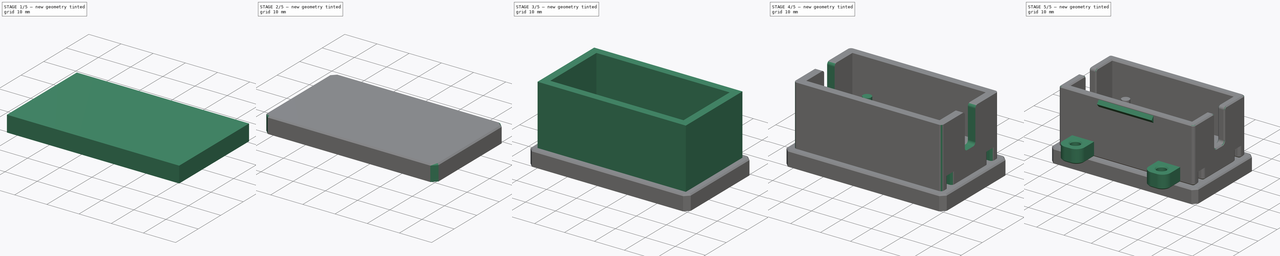
[diagram: build sequence overview — one tinted view per stage of 5, left to right]
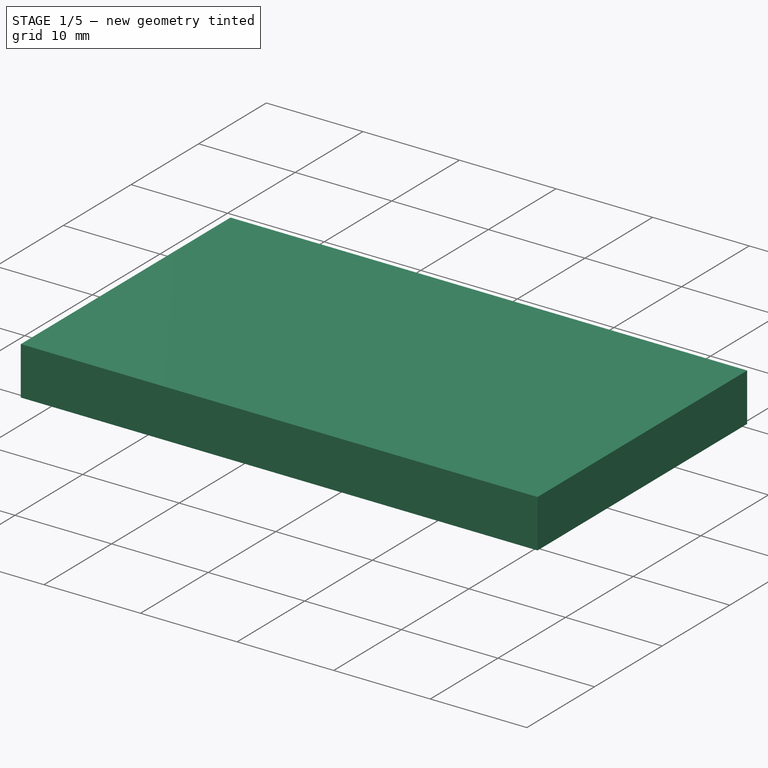
[diagram: stage 1 of 5 — iso view after this stage's code; geometry added in this stage tinted green]
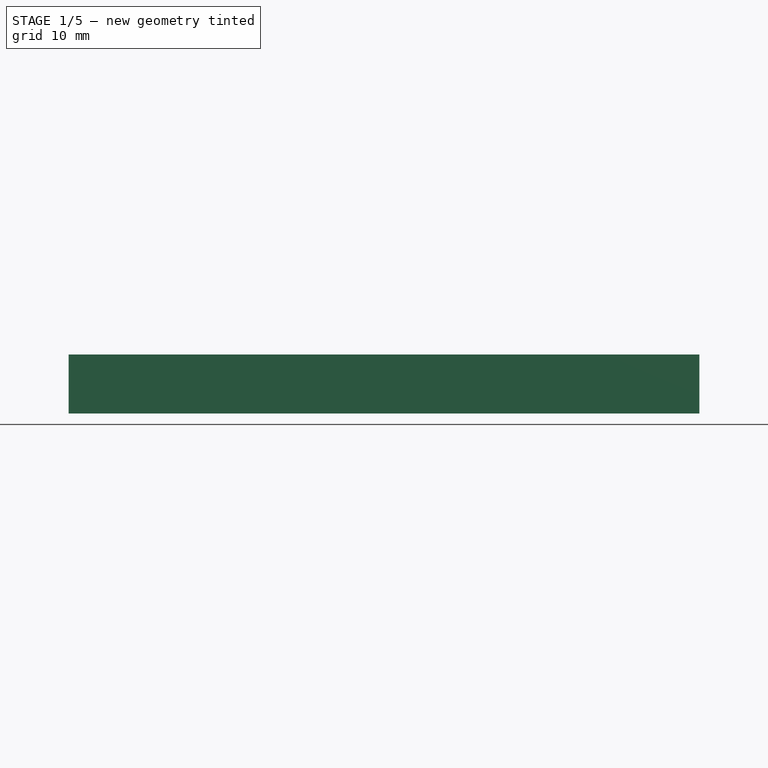
[diagram: stage 1 of 5 — front view after this stage's code; geometry added in this stage tinted green]
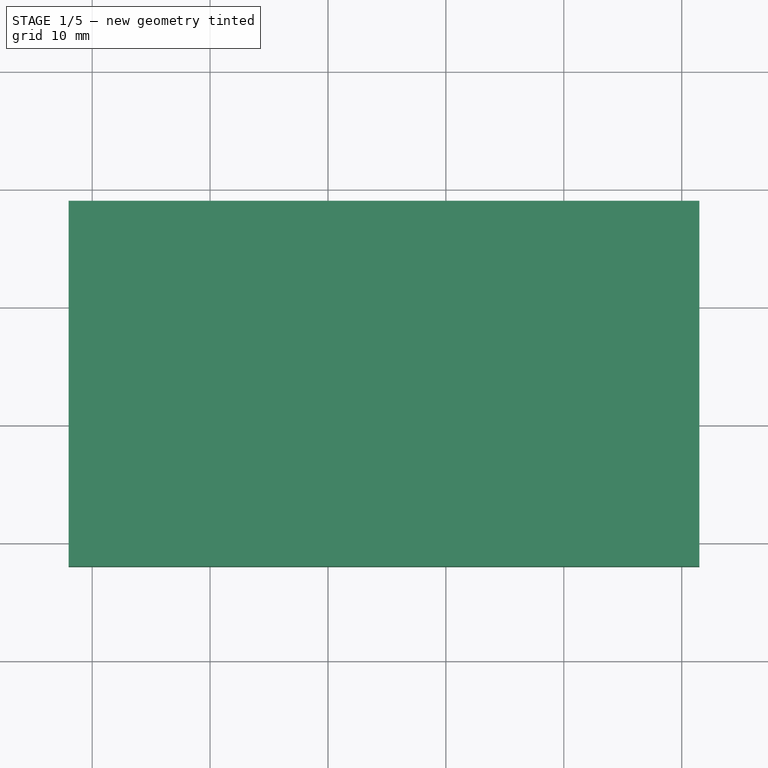
[diagram: stage 1 of 5 — top view after this stage's code; geometry added in this stage tinted green]
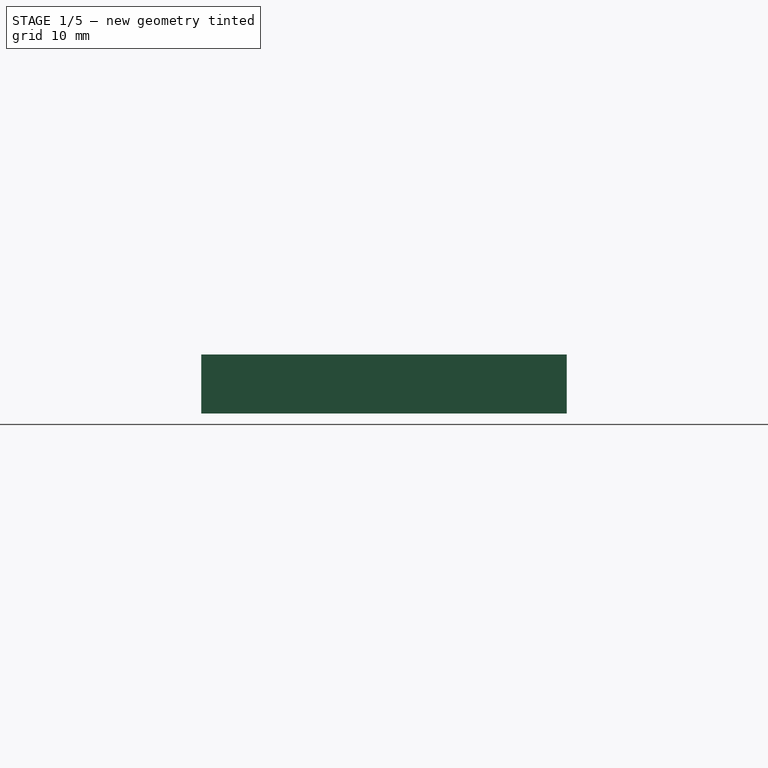
[diagram: stage 1 of 5 — right view after this stage's code; geometry added in this stage tinted green]
FCSTD DOCUMENT  (FreeCAD 0.19R24291 (Git))
Label: dc-dc-mounter
License: All rights reserved
LicenseURL: http://en.wikipedia.org/wiki/All_rights_reserved
objects: Sketcher::SketchObject×12, PartDesign::Pocket×7, PartDesign::Pad×5, PartDesign::Chamfer×4, PartDesign::Fillet×3, PartDesign::Plane×2, PartDesign::Body×2
note: 54 computed .brp shape members not serialized (recipe doc carries the construction recipe); baked Part::Feature solids carry a one-line shape summary decoded from their .brp

FEATURE [Sketcher::SketchObject] Sketch007
  FullyConstrained = true
  MapMode = 5
  Support = -> [XY_Plane001]
  sketch-geometry (4):
    g0: LineSegment StartX=-2 StartY=29 StartZ=0 EndX=51.5 EndY=29 EndZ=0
    g1: LineSegment StartX=51.5 StartY=29 StartZ=0 EndX=51.5 EndY=-2 EndZ=0
    g2: LineSegment StartX=51.5 StartY=-2 StartZ=0 EndX=-2 EndY=-2 EndZ=0
    g3: LineSegment StartX=-2 StartY=-2 StartZ=0 EndX=-2 EndY=29 EndZ=0
  constraints (12):
    c: Coincident(g0,g1)
    c: Coincident(g1,g2)
    c: Coincident(g2,g3)
    c: Coincident(g3,g0)
    c: Horizontal(g0)
    c: Horizontal(g2)
    c: Vertical(g1)
    c: Vertical(g3)
    c: DistanceY(g3,g3) = 31
    c: DistanceY(g2,g-1) = 2
    c: DistanceX(g0,g0) = 53.5
    c: DistanceX(g2,g-1) = 2
FEATURE [PartDesign::Pad] Pad004
  Direction = (1,1,1)
  Length = 5
  Length2 = 100
  Profile = -> Sketch007
  Reversed = true
  Type = 0
FEATURE [Sketcher::SketchObject] Sketch008
  FullyConstrained = true
  MapMode = 5
  Placement = pos=(0,0,-5) rot=(1,0,0;3.14159rad)
  Support = -> [Pad004]
  sketch-geometry (4):
    g0: LineSegment StartX=-0.15 StartY=0.15 StartZ=0 EndX=49.65 EndY=0.15 EndZ=0
    g1: LineSegment StartX=49.65 StartY=0.15 StartZ=0 EndX=49.65 EndY=-27.15 EndZ=0
    g2: LineSegment StartX=49.65 StartY=-27.15 StartZ=0 EndX=-0.15 EndY=-27.15 EndZ=0
    g3: LineSegment StartX=-0.15 StartY=-27.15 StartZ=0 EndX=-0.15 EndY=0.15 EndZ=0
  constraints (12):
    c: Coincident(g0,g1)
    c: Coincident(g1,g2)
    c: Coincident(g2,g3)
    c: Coincident(g3,g0)
    c: Horizontal(g0)
    c: Horizontal(g2)
    c: Vertical(g1)
    c: Vertical(g3)
    c: DistanceX(g0,g0) = 49.8
    c: DistanceY(g1,g1) = 27.3
    c: DistanceX(g0,g-1) = 0.15
    c: DistanceY(g-1,g0) = 0.15
FEATURE [PartDesign::Pocket] Pocket003
  BaseFeature = -> Pad004
  Length = 3.5
  Length2 = 100
  Profile = -> Sketch008
  Type = 0
FEATURE [PartDesign::Plane] DatumPlane001
  AttachmentOffset = pos=(0,0,24.75) rot=(0,0,1;0rad)
  Length = 64.3923
  MapMode = 5
  Placement = pos=(24.75,-5.5e-15,5.5e-15) rot=(0.57735,0.57735,0.57735;2.0944rad)
  ResizeMode = 0
  Support = -> [YZ_Plane001]
  Width = 60.3923
FEATURE [Sketcher::SketchObject] Sketch009
  ExternalGeometry = -> [Pocket003]
  FullyConstrained = true
  MapMode = 5
  Placement = pos=(24.75,-5.5e-15,5.5e-15) rot=(0.57735,0.57735,0.57735;2.0944rad)
  Support = -> [DatumPlane001]
  sketch-geometry (6):
    g0: LineSegment StartX=-0.15 StartY=-2.05825 StartZ=0 EndX=-1.15 EndY=-3.25 EndZ=0
    g1: LineSegment StartX=-1.15 StartY=-3.25 StartZ=0 EndX=-0.15 EndY=-4.44175 EndZ=0
    g2: LineSegment StartX=-0.15 StartY=-4.44175 StartZ=0 EndX=-0.15 EndY=-2.05825 EndZ=0
    g3: LineSegment StartX=27.15 StartY=-2.05825 StartZ=0 EndX=28.15 EndY=-3.25 EndZ=0
    g4: LineSegment StartX=28.15 StartY=-3.25 StartZ=0 EndX=27.15 EndY=-4.44175 EndZ=0
    g5: LineSegment StartX=27.15 StartY=-4.44175 StartZ=0 EndX=27.15 EndY=-2.05825 EndZ=0
  constraints (18):
    c: PointOnObject(g0,g-3)
    c: Coincident(g0,g1)
    c: Coincident(g1,g2)
    c: Coincident(g2,g0)
    c: Vertical(g2)
    c: Angle(g0,g2) = 0.698132
    c: Angle(g2,g1) = 0.698132
    c: DistanceX(g0,g1) = 1
    c: DistanceY(g0,g-1) = 3.25
    c: PointOnObject(g3,g-4)
    c: Coincident(g3,g4)
    c: Coincident(g4,g5)
    c: Coincident(g5,g3)
    c: Vertical(g5)
    c: Horizontal(g0,g3)
    c: Horizontal(g3,g0)
    c: Horizontal(g4,g1)
    c: DistanceX(g3,g3) = 1
FEATURE [PartDesign::Pocket] Pocket004
  BaseFeature = -> Pocket003
  Length = 22
  Length2 = 100
  Midplane = true
  Profile = -> Sketch009
  Type = 0
FEATURE [PartDesign::Fillet] Fillet002
  Base = -> Pocket004 [Edge15,Edge21]
  BaseFeature = -> Pocket004
  Radius = 0.4
  SupportTransform = false
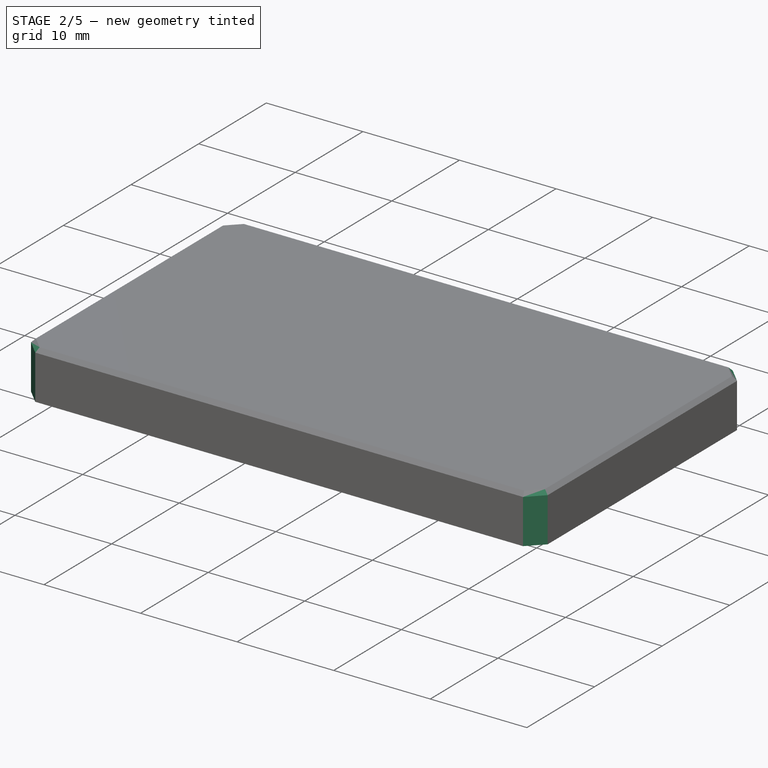
[diagram: stage 2 of 5 — iso view after this stage's code; geometry added in this stage tinted green]
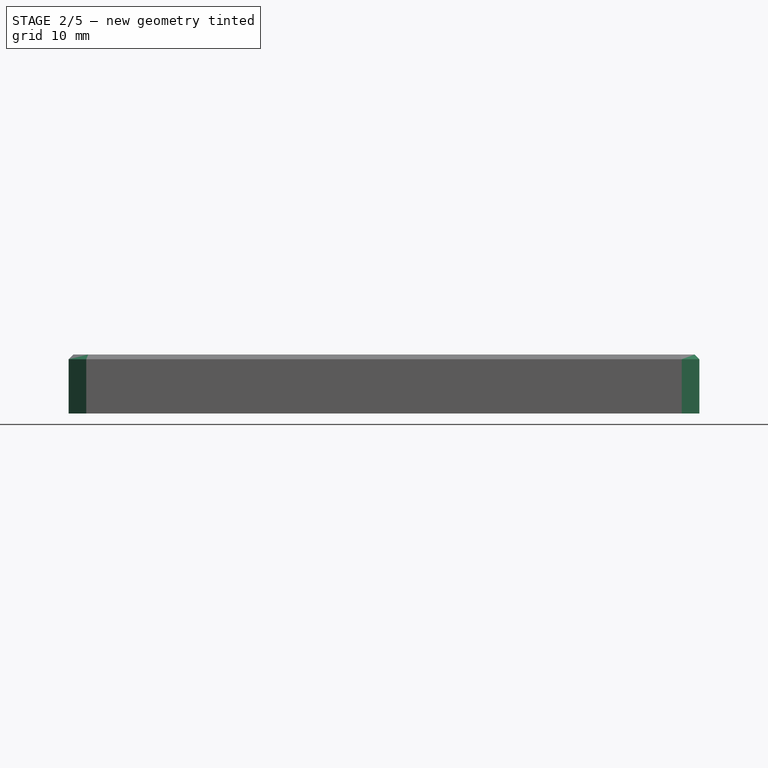
[diagram: stage 2 of 5 — front view after this stage's code; geometry added in this stage tinted green]
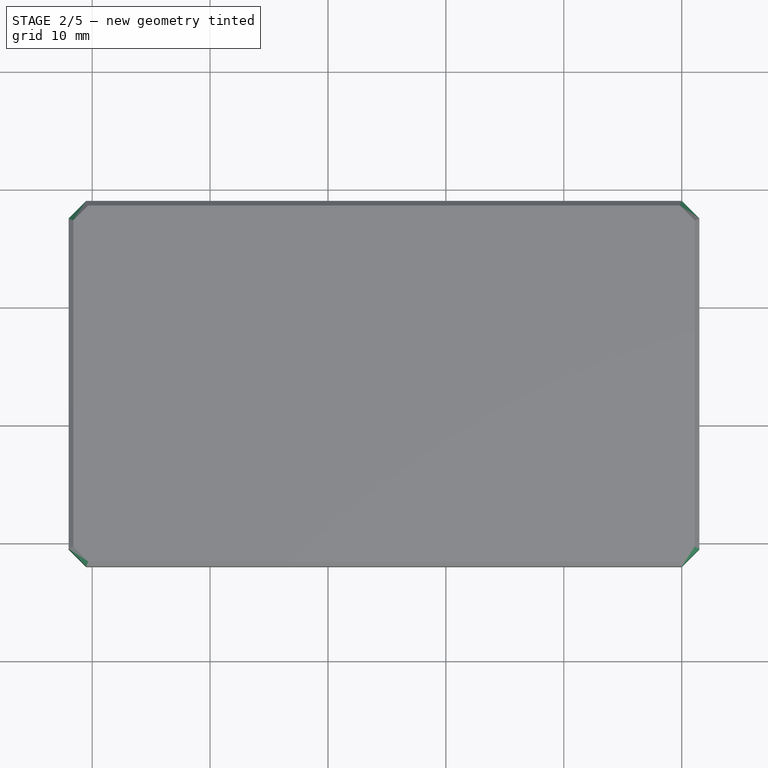
[diagram: stage 2 of 5 — top view after this stage's code; geometry added in this stage tinted green]
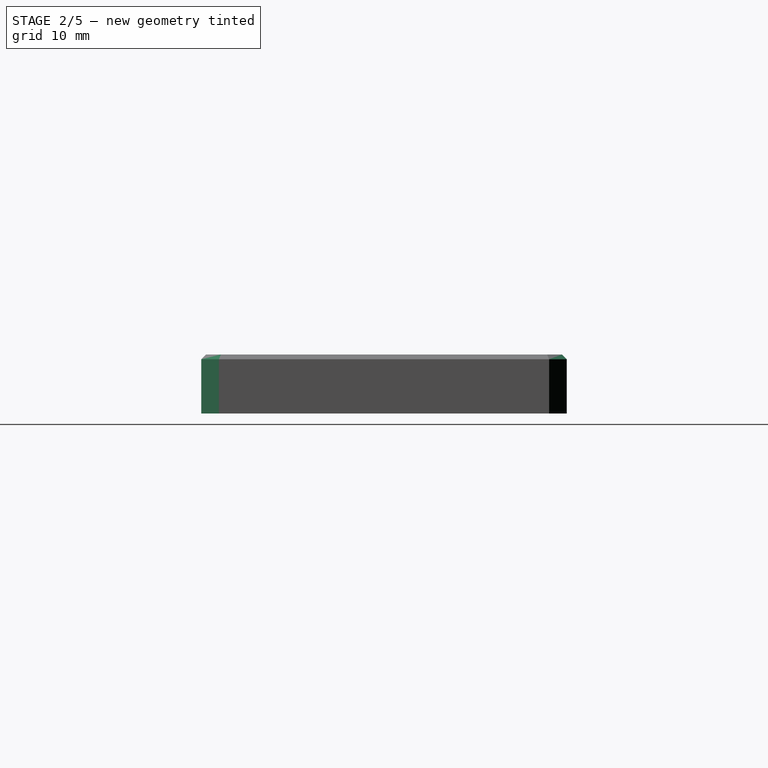
[diagram: stage 2 of 5 — right view after this stage's code; geometry added in this stage tinted green]
FEATURE [PartDesign::Body] Body
  Group = -> [Sketch,Pad,Sketch001,Pocket,Sketch002,Pocket001,Sketch003,Pocket002,Sketch004,Pad001,Fillet,Sketch005,Pad002,Fillet001,DatumPlane,Sketch006,Pad003,Chamfer002]
  Origin = -> Origin
  Tip = -> Chamfer002
FEATURE [Sketcher::SketchObject] Sketch010
  ExternalGeometry = -> [Fillet002]
  FullyConstrained = true
  MapMode = 5
  Placement = pos=(0,0,-5) rot=(1,0,0;3.14159rad)
  Support = -> [Fillet002]
  sketch-geometry (4):
    g0: LineSegment StartX=13.75 StartY=0.25 StartZ=0 EndX=35.75 EndY=0.25 EndZ=0
    g1: LineSegment StartX=35.75 StartY=0.25 StartZ=0 EndX=35.75 EndY=-27.25 EndZ=0
    g2: LineSegment StartX=35.75 StartY=-27.25 StartZ=0 EndX=13.75 EndY=-27.25 EndZ=0
    g3: LineSegment StartX=13.75 StartY=-27.25 StartZ=0 EndX=13.75 EndY=0.25 EndZ=0
  constraints (12):
    c: Coincident(g0,g1)
    c: Coincident(g1,g2)
    c: Coincident(g2,g3)
    c: Coincident(g3,g0)
    c: Horizontal(g0)
    c: Horizontal(g2)
    c: Vertical(g1)
    c: Vertical(g3)
    c: PointOnObject(g0,g-3)
    c: Vertical(g0,g-4)
    c: DistanceY(g-1,g0) = 0.25
    c: DistanceY(g3,g3) = 27.5
FEATURE [PartDesign::Pocket] Pocket005
  BaseFeature = -> Fillet002
  Length = 1
  Length2 = 100
  Profile = -> Sketch010
  Refine = true
  Type = 0
FEATURE [PartDesign::Chamfer] Chamfer
  Angle = 45
  Base = -> Pocket005 [Edge18,Edge22,Edge20,Edge17]
  BaseFeature = -> Pocket005
  ChamferType = 0
  FlipDirection = false
  Size = 1.5
  Size2 = 1
  SupportTransform = false
FEATURE [PartDesign::Chamfer] Chamfer003
  Angle = 45
  Base = -> Chamfer [Face20]
  BaseFeature = -> Chamfer
  ChamferType = 0
  FlipDirection = false
  Size = 0.4
  Size2 = 1
  SupportTransform = false
FEATURE [PartDesign::Chamfer] Chamfer004
  Angle = 45
  Base = -> Chamfer003 [Edge25,Edge19]
  BaseFeature = -> Chamfer003
  ChamferType = 0
  FlipDirection = false
  Size = 0.4
  Size2 = 1
  SupportTransform = false
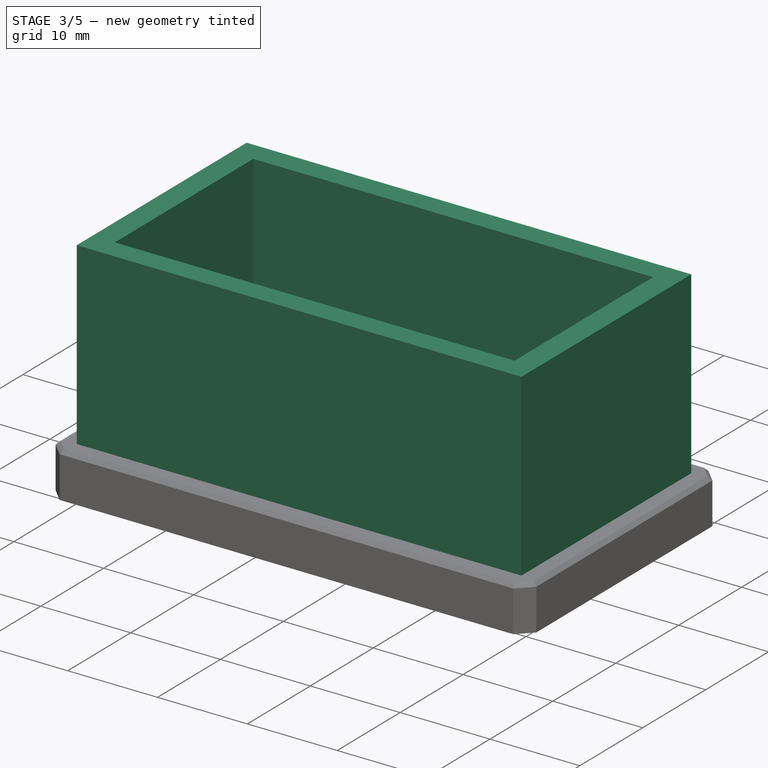
[diagram: stage 3 of 5 — iso view after this stage's code; geometry added in this stage tinted green]
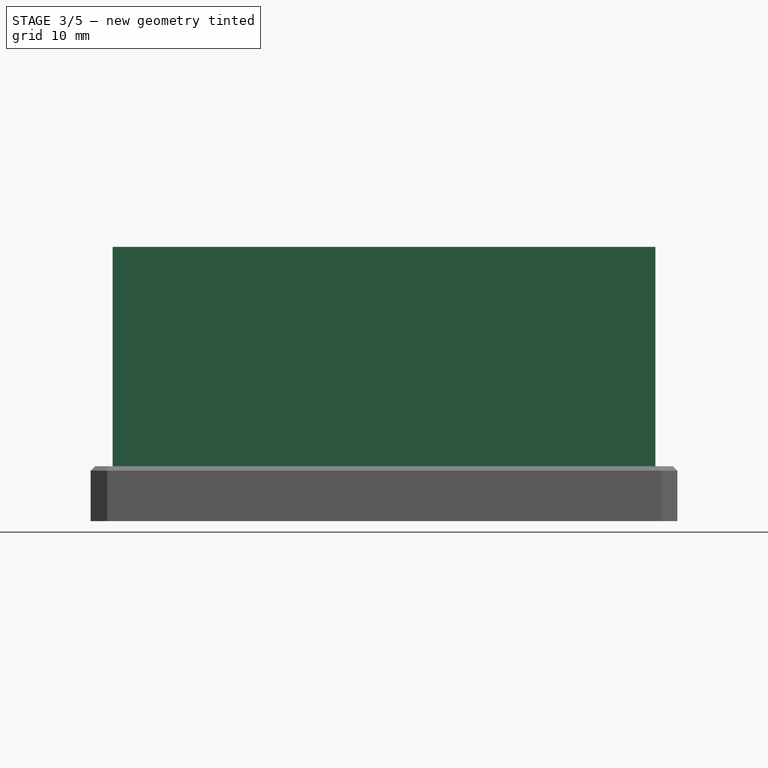
[diagram: stage 3 of 5 — front view after this stage's code; geometry added in this stage tinted green]
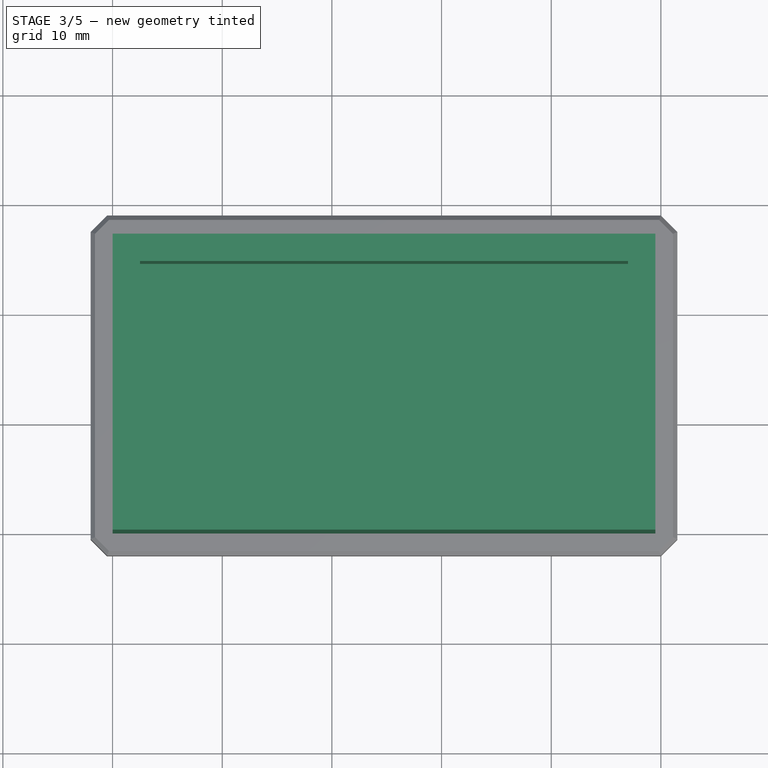
[diagram: stage 3 of 5 — top view after this stage's code; geometry added in this stage tinted green]
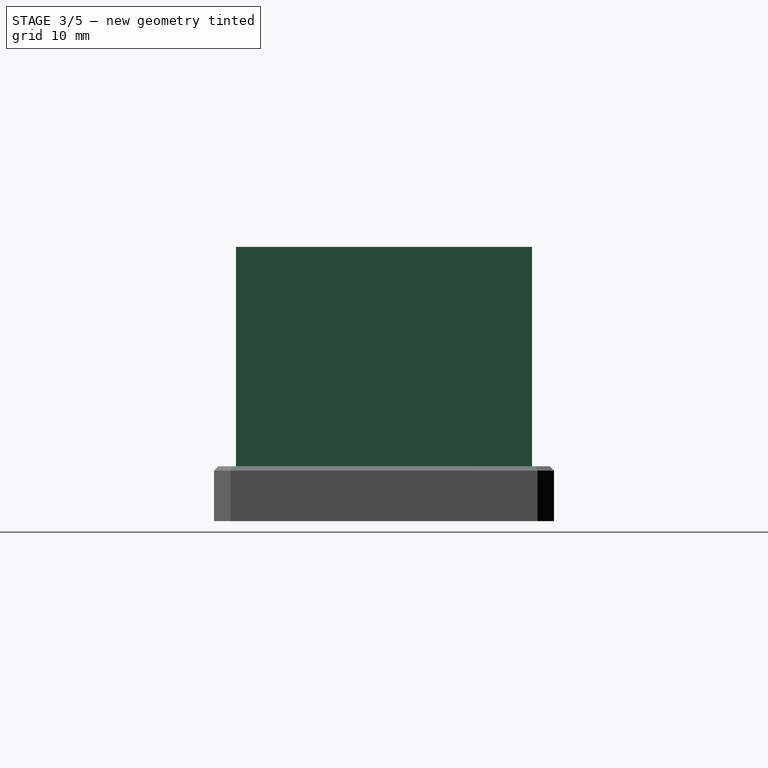
[diagram: stage 3 of 5 — right view after this stage's code; geometry added in this stage tinted green]
FEATURE [Sketcher::SketchObject] Sketch
  FullyConstrained = true
  MapMode = 5
  Support = -> [XY_Plane]
  sketch-geometry (4):
    g0: LineSegment StartX=0 StartY=0 StartZ=0 EndX=49.5 EndY=0 EndZ=0
    g1: LineSegment StartX=49.5 StartY=0 StartZ=0 EndX=49.5 EndY=27 EndZ=0
    g2: LineSegment StartX=49.5 StartY=27 StartZ=0 EndX=0 EndY=27 EndZ=0
    g3: LineSegment StartX=0 StartY=27 StartZ=0 EndX=0 EndY=0 EndZ=0
  constraints (11):
    c: Coincident(g0,g1)
    c: Coincident(g1,g2)
    c: Coincident(g2,g3)
    c: Coincident(g3,g0)
    c: Horizontal(g0)
    c: Horizontal(g2)
    c: Vertical(g1)
    c: Vertical(g3)
    c: Coincident(g0,g-1)
    c: DistanceX(g2,g2) = 49.5
    c: DistanceY(g1,g1) = 27
FEATURE [PartDesign::Pad] Pad
  Direction = (1,1,1)
  Length = 20
  Length2 = 100
  Profile = -> Sketch
  Type = 0
FEATURE [Sketcher::SketchObject] Sketch001
  ExternalGeometry = -> [Pad]
  FullyConstrained = true
  MapMode = 5
  Placement = pos=(0,0,20) rot=(0,0,1;0rad)
  Support = -> [Pad]
  sketch-geometry (4):
    g0: LineSegment StartX=2.5 StartY=24.5 StartZ=0 EndX=47 EndY=24.5 EndZ=0
    g1: LineSegment StartX=47 StartY=24.5 StartZ=0 EndX=47 EndY=2.5 EndZ=0
    g2: LineSegment StartX=47 StartY=2.5 StartZ=0 EndX=2.5 EndY=2.5 EndZ=0
    g3: LineSegment StartX=2.5 StartY=2.5 StartZ=0 EndX=2.5 EndY=24.5 EndZ=0
  constraints (12):
    c: Coincident(g0,g1)
    c: Coincident(g1,g2)
    c: Coincident(g2,g3)
    c: Coincident(g3,g0)
    c: Horizontal(g0)
    c: Horizontal(g2)
    c: Vertical(g1)
    c: Vertical(g3)
    c: DistanceX(g-1,g2) = 2.5
    c: DistanceX(g0,g-3) = 2.5
    c: DistanceY(g-1,g2) = 2.5
    c: DistanceY(g0,g-3) = 2.5
FEATURE [PartDesign::Pocket] Pocket
  BaseFeature = -> Pad
  Length = 15
  Length2 = 100
  Profile = -> Sketch001
  Type = 0
FEATURE [Sketcher::SketchObject] Sketch011
  FullyConstrained = true
  MapMode = 5
  Placement = pos=(0,0,-1.5) rot=(1,0,0;3.14159rad)
  Support = -> [Chamfer004]
  sketch-geometry (1):
    g0: Circle CenterX=19 CenterY=-3.5 CenterZ=0 NormalX=0 NormalY=0 NormalZ=1 AngleXU=0 Radius=3.45
  constraints (3):
    c: DistanceX(g-1,g0) = 19
    c: DistanceY(g0,g-1) = 3.5
    c: Radius(g0) = 3.45
FEATURE [PartDesign::Pocket] Pocket006
  BaseFeature = -> Chamfer004
  Length = 1
  Length2 = 100
  Profile = -> Sketch011
  Type = 0
FEATURE [PartDesign::Body] Body001
  Group = -> [Sketch007,Pad004,Sketch008,Pocket003,DatumPlane001,Sketch009,Pocket004,Fillet002,Sketch010,Pocket005,Chamfer,Chamfer003,Chamfer004,Sketch011,Pocket006]
  Origin = -> Origin001
  Placement = pos=(0,0,22) rot=(0,0,1;0rad)
  Tip = -> Pocket006
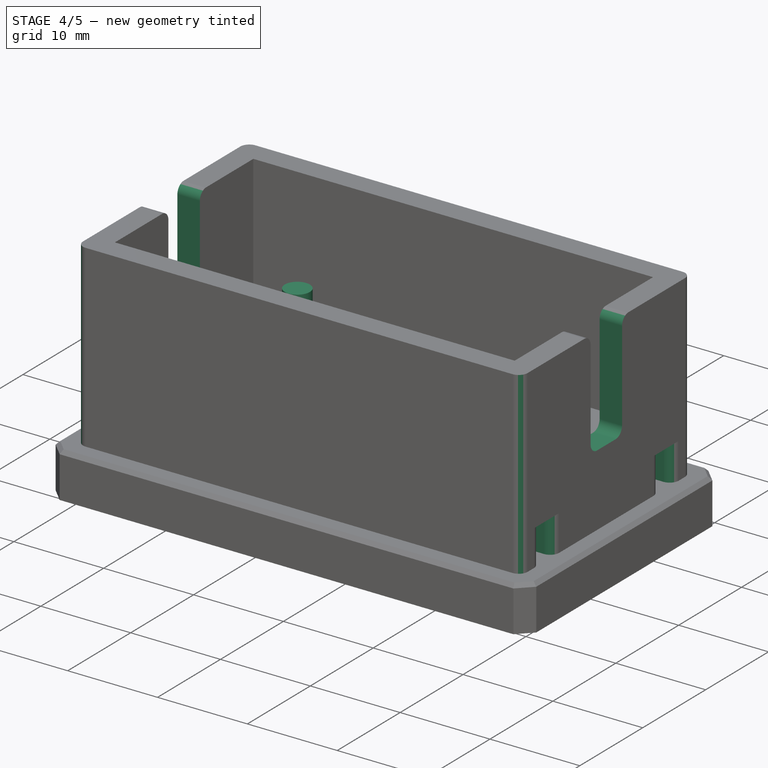
[diagram: stage 4 of 5 — iso view after this stage's code; geometry added in this stage tinted green]
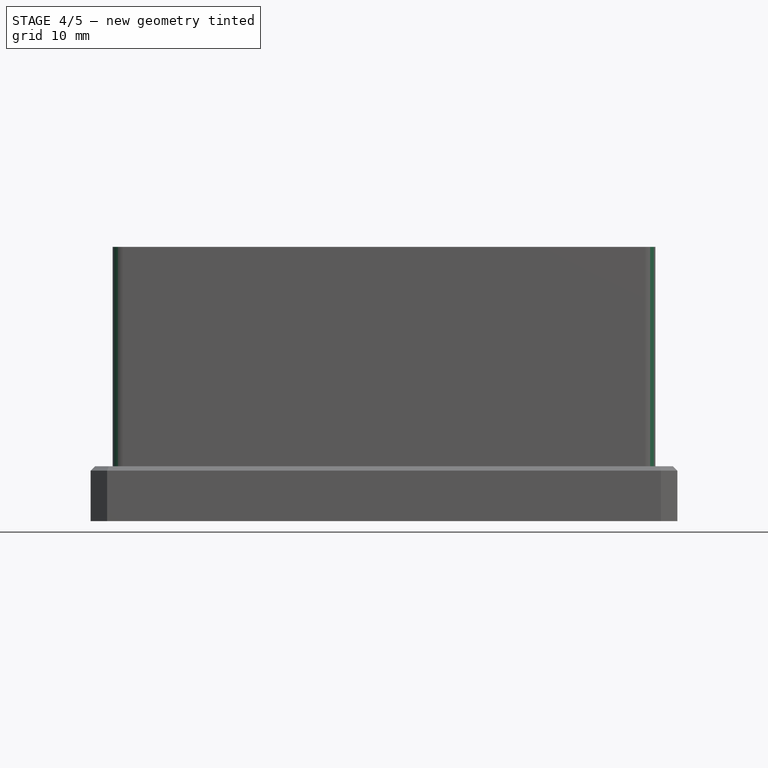
[diagram: stage 4 of 5 — front view after this stage's code; geometry added in this stage tinted green]
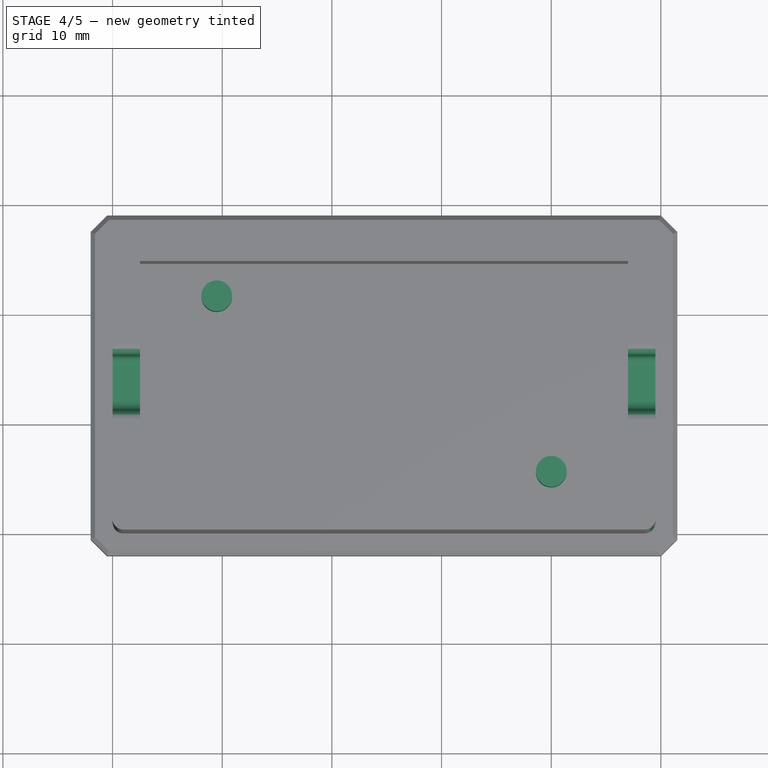
[diagram: stage 4 of 5 — top view after this stage's code; geometry added in this stage tinted green]
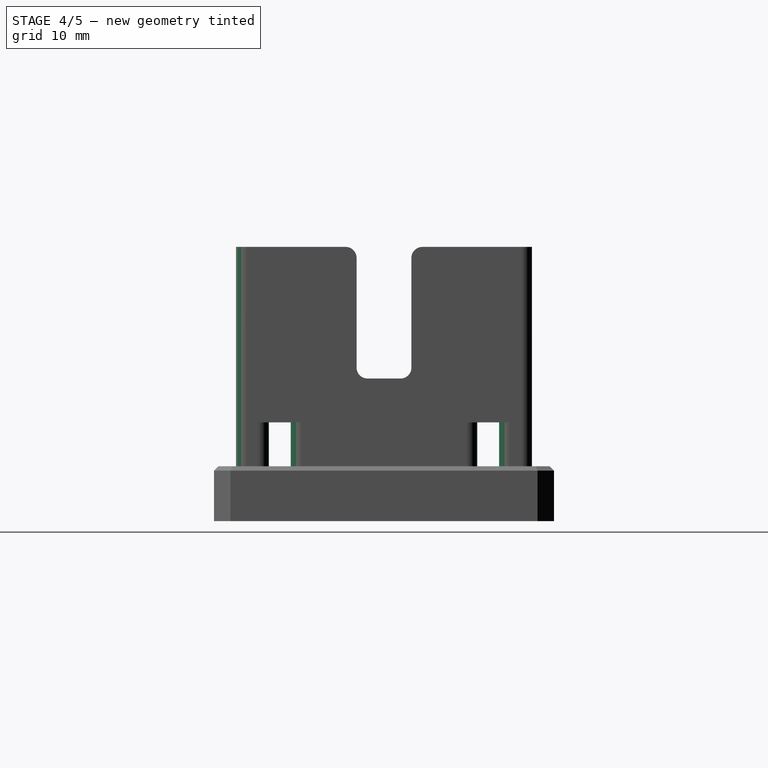
[diagram: stage 4 of 5 — right view after this stage's code; geometry added in this stage tinted green]
FEATURE [Sketcher::SketchObject] Sketch002
  ExternalGeometry = -> [Pocket]
  FullyConstrained = true
  MapMode = 5
  Placement = pos=(0,0,0) rot=(1,0,0;3.14159rad)
  Support = -> [Pocket]
  sketch-geometry (40):
    g0: LineSegment StartX=0 StartY=-3 StartZ=0 EndX=49.5 EndY=-3 EndZ=0
    g1: LineSegment StartX=49.5 StartY=-3 StartZ=0 EndX=49.5 EndY=-5 EndZ=0
    g2: LineSegment StartX=49.5 StartY=-5 StartZ=0 EndX=24 EndY=-5 EndZ=0
    g3: LineSegment StartX=24 StartY=-5 StartZ=0 EndX=24 EndY=-12 EndZ=0
    g4: LineSegment StartX=24 StartY=-12 StartZ=0 EndX=7 EndY=-12 EndZ=0
    g5: LineSegment StartX=7 StartY=-12 StartZ=0 EndX=7 EndY=-5 EndZ=0
    g6: LineSegment StartX=7 StartY=-5 StartZ=0 EndX=0 EndY=-5 EndZ=0
    g7: LineSegment StartX=0 StartY=-5 StartZ=0 EndX=0 EndY=-3 EndZ=0
    g8: LineSegment StartX=14 StartY=-5 StartZ=0 EndX=17 EndY=-5 EndZ=0
    g9: LineSegment StartX=17 StartY=-5 StartZ=0 EndX=17 EndY=-10 EndZ=0
    g10: LineSegment StartX=17 StartY=-10 StartZ=0 EndX=14 EndY=-10 EndZ=0
    g11: LineSegment StartX=14 StartY=-10 StartZ=0 EndX=14 EndY=-5 EndZ=0
    g12: LineSegment StartX=9 StartY=-5 StartZ=0 EndX=12 EndY=-5 EndZ=0
    g13: LineSegment StartX=12 StartY=-5 StartZ=0 EndX=12 EndY=-10 EndZ=0
    g14: LineSegment StartX=12 StartY=-10 StartZ=0 EndX=9 EndY=-10 EndZ=0
    g15: LineSegment StartX=9 StartY=-10 StartZ=0 EndX=9 EndY=-5 EndZ=0
    g16: LineSegment StartX=19 StartY=-5 StartZ=0 EndX=22 EndY=-5 EndZ=0
    g17: LineSegment StartX=22 StartY=-5 StartZ=0 EndX=22 EndY=-10 EndZ=0
    g18: LineSegment StartX=22 StartY=-10 StartZ=0 EndX=19 EndY=-10 EndZ=0
    g19: LineSegment StartX=19 StartY=-10 StartZ=0 EndX=19 EndY=-5 EndZ=0
    g20: LineSegment StartX=0 StartY=-24 StartZ=0 EndX=49.5 EndY=-24 EndZ=0
    g21: LineSegment StartX=49.5 StartY=-24 StartZ=0 EndX=49.5 EndY=-22 EndZ=0
    g22: LineSegment StartX=49.5 StartY=-22 StartZ=0 EndX=42.5 EndY=-22 EndZ=0
    g23: LineSegment StartX=42.5 StartY=-22 StartZ=0 EndX=42.5 EndY=-15 EndZ=0
    g24: LineSegment StartX=42.5 StartY=-15 StartZ=0 EndX=25.5 EndY=-15 EndZ=0
    g25: LineSegment StartX=25.5 StartY=-15 StartZ=0 EndX=25.5 EndY=-22 EndZ=0
    g26: LineSegment StartX=25.5 StartY=-22 StartZ=0 EndX=0 EndY=-22 EndZ=0
    g27: LineSegment StartX=0 StartY=-22 StartZ=0 EndX=0 EndY=-24 EndZ=0
    g28: LineSegment StartX=27.5 StartY=-17 StartZ=0 EndX=30.5 EndY=-17 EndZ=0
    g29: LineSegment StartX=30.5 StartY=-17 StartZ=0 EndX=30.5 EndY=-22 EndZ=0
    g30: LineSegment StartX=30.5 StartY=-22 StartZ=0 EndX=27.5 EndY=-22 EndZ=0
    g31: LineSegment StartX=27.5 StartY=-22 StartZ=0 EndX=27.5 EndY=-17 EndZ=0
    g32: LineSegment StartX=32.5 StartY=-17 StartZ=0 EndX=35.5 EndY=-17 EndZ=0
    g33: LineSegment StartX=35.5 StartY=-17 StartZ=0 EndX=35.5 EndY=-22 EndZ=0
    g34: LineSegment StartX=35.5 StartY=-22 StartZ=0 EndX=32.5 EndY=-22 EndZ=0
    g35: LineSegment StartX=32.5 StartY=-22 StartZ=0 EndX=32.5 EndY=-17 EndZ=0
    g36: LineSegment StartX=37.5 StartY=-17 StartZ=0 EndX=40.5 EndY=-17 EndZ=0
    g37: LineSegment StartX=40.5 StartY=-17 StartZ=0 EndX=40.5 EndY=-22 EndZ=0
    g38: LineSegment StartX=40.5 StartY=-22 StartZ=0 EndX=37.5 EndY=-22 EndZ=0
    g39: LineSegment StartX=37.5 StartY=-22 StartZ=0 EndX=37.5 EndY=-17 EndZ=0
  constraints (120):
    c: PointOnObject(g0,g-2)
    c: PointOnObject(g0,g-3)
    c: Horizontal(g0)
    c: Coincident(g0,g1)
    c: PointOnObject(g1,g-3)
    c: Coincident(g1,g2)
    c: Horizontal(g2)
    c: Coincident(g2,g3)
    c: Vertical(g3)
    c: Coincident(g3,g4)
    c: Horizontal(g4)
    c: Coincident(g4,g5)
    c: Vertical(g5)
    c: Coincident(g5,g6)
    c: PointOnObject(g6,g-2)
    c: Horizontal(g6)
    c: Coincident(g6,g7)
    c: Coincident(g7,g0)
    c: Coincident(g8,g9)
    c: Coincident(g9,g10)
    c: Coincident(g10,g11)
    c: Coincident(g11,g8)
    c: Horizontal(g8)
    c: Horizontal(g10)
    c: Vertical(g9)
    c: Vertical(g11)
    c: Coincident(g12,g13)
    c: Coincident(g13,g14)
    c: Coincident(g14,g15)
    c: Coincident(g15,g12)
    c: Horizontal(g12)
    c: Horizontal(g14)
    c: Vertical(g13)
    c: Vertical(g15)
    c: Coincident(g16,g17)
    c: Coincident(g17,g18)
    c: Coincident(g18,g19)
    c: Coincident(g19,g16)
    c: Horizontal(g16)
    c: Horizontal(g18)
    c: Vertical(g17)
    c: Vertical(g19)
    c: PointOnObject(g20,g-2)
    c: PointOnObject(g20,g-3)
    c: Horizontal(g20)
    c: Coincident(g20,g21)
    c: PointOnObject(g21,g-3)
    c: Coincident(g21,g22)
    c: Horizontal(g22)
    c: Coincident(g22,g23)
    c: Vertical(g23)
    c: Coincident(g23,g24)
    c: Horizontal(g24)
    c: Coincident(g24,g25)
    c: Vertical(g25)
    c: Coincident(g25,g26)
    c: PointOnObject(g26,g-2)
    c: Coincident(g26,g27)
    c: Coincident(g27,g20)
    c: Horizontal(g26)
    c: Coincident(g28,g29)
    c: Coincident(g29,g30)
    c: Coincident(g30,g31)
    c: Coincident(g31,g28)
    c: Horizontal(g28)
    c: Horizontal(g30)
    c: Vertical(g29)
    c: Vertical(g31)
    c: Coincident(g32,g33)
    c: Coincident(g33,g34)
    c: Coincident(g34,g35)
    c: Coincident(g35,g32)
    c: Horizontal(g32)
    c: Horizontal(g34)
    c: Vertical(g33)
    c: Vertical(g35)
    c: Coincident(g36,g37)
    c: Coincident(g37,g38)
    c: Coincident(g38,g39)
    c: Coincident(g39,g36)
    c: Horizontal(g36)
    c: Horizontal(g38)
    c: Vertical(g37)
    c: Vertical(g39)
    c: Horizontal(g12,g8)
    c: Horizontal(g8,g16)
    c: Horizontal(g13,g9)
    c: Horizontal(g9,g17)
    c: Horizontal(g28,g32)
    c: Horizontal(g32,g36)
    c: Horizontal(g29,g33)
    c: Horizontal(g33,g37)
    c: DistanceY(g0,g-1) = 3
    c: DistanceY(g-3,g20) = 3
    c: Horizontal(g5,g2)
    c: Horizontal(g25,g22)
    c: DistanceY(g7,g7) = 2
    c: DistanceY(g27,g27) = 2
    c: DistanceX(g6,g6) = 7
    c: DistanceX(g12,g12) = 3
    c: DistanceX(g8,g8) = 3
    c: DistanceX(g16,g16) = 3
    c: DistanceX(g22,g22) = 7
    c: DistanceX(g36,g36) = 3
    c: DistanceX(g32,g32) = 3
    c: DistanceX(g28,g28) = 3
    c: DistanceX(g37,g22) = 2
    c: DistanceX(g33,g38) = 2
    c: DistanceX(g29,g34) = 2
    c: DistanceX(g25,g30) = 2
    c: DistanceX(g5,g12) = 2
    c: DistanceX(g12,g8) = 2
    c: DistanceX(g8,g16) = 2
    c: DistanceX(g16,g2) = 2
    c: Horizontal(g5,g12)
    c: Horizontal(g30,g25)
    c: DistanceY(g15,g15) = 5
    c: DistanceY(g4,g14) = 2
    c: DistanceY(g31,g31) = 5
    c: DistanceY(g28,g24) = 2
FEATURE [PartDesign::Pocket] Pocket001
  BaseFeature = -> Pocket
  Length = 4
  Length2 = 100
  Profile = -> Sketch002
  Type = 0
FEATURE [Sketcher::SketchObject] Sketch003
  ExternalGeometry = -> [Pocket001]
  FullyConstrained = true
  MapMode = 5
  Placement = pos=(0,0,0) rot=(0.57735,-0.57735,-0.57735;2.0944rad)
  Support = -> [Pocket001]
  sketch-geometry (4):
    g0: LineSegment StartX=-16 StartY=20 StartZ=0 EndX=-11 EndY=20 EndZ=0
    g1: LineSegment StartX=-11 StartY=20 StartZ=0 EndX=-11 EndY=8 EndZ=0
    g2: LineSegment StartX=-11 StartY=8 StartZ=0 EndX=-16 EndY=8 EndZ=0
    g3: LineSegment StartX=-16 StartY=8 StartZ=0 EndX=-16 EndY=20 EndZ=0
  constraints (12):
    c: Coincident(g0,g1)
    c: Coincident(g1,g2)
    c: Coincident(g2,g3)
    c: Coincident(g3,g0)
    c: Horizontal(g0)
    c: Horizontal(g2)
    c: Vertical(g1)
    c: Vertical(g3)
    c: PointOnObject(g0,g-3)
    c: DistanceX(g2,g2) = 5
    c: DistanceX(g0,g-3) = 11
    c: DistanceY(g3,g3) = 12
FEATURE [PartDesign::Pocket] Pocket002
  BaseFeature = -> Pocket001
  Length = 5
  Length2 = 100
  Profile = -> Sketch003
  Type = 1
FEATURE [Sketcher::SketchObject] Sketch004
  ExternalGeometry = -> [Pocket002]
  FullyConstrained = true
  MapMode = 5
  Placement = pos=(0,0,5) rot=(0,0,1;0rad)
  Support = -> [Pocket002]
  sketch-geometry (2):
    g0: Circle CenterX=9.5 CenterY=21.5 CenterZ=0 NormalX=0 NormalY=0 NormalZ=1 AngleXU=0 Radius=1.4
    g1: Circle CenterX=40 CenterY=5.5 CenterZ=0 NormalX=0 NormalY=0 NormalZ=1 AngleXU=0 Radius=1.4
  constraints (6):
    c: Equal(g1,g0)
    c: DistanceX(g-3,g0) = 7
    c: DistanceX(g1,g-4) = 7
    c: DistanceY(g0,g-3) = 3
    c: DistanceY(g-4,g1) = 3
    c: Radius(g0) = 1.4
FEATURE [PartDesign::Pad] Pad001
  BaseFeature = -> Pocket002
  Direction = (1,1,1)
  Length = 5
  Length2 = 100
  Profile = -> Sketch004
  Type = 0
FEATURE [PartDesign::Fillet] Fillet
  Base = -> Pad001 [Edge40,Edge98,Edge36,Edge95,Edge107,Edge91,Edge93,Edge105,Edge2,Edge29,Edge21,Edge23,Edge25,Edge27,Edge19,Edge6,Edge8,Edge10,Edge12,Edge1,Edge103,Edge121,Edge123,Edge129,Edge131,Edge137,Edge139,Edge61,Edge117,Edge116,Edge119,Edge118,Edge127,Edge126,Edge135,Edge134,Edge102,Edge142,Edge149,Edge145,+12 more]
  BaseFeature = -> Pad001
  Radius = 1
  SupportTransform = false
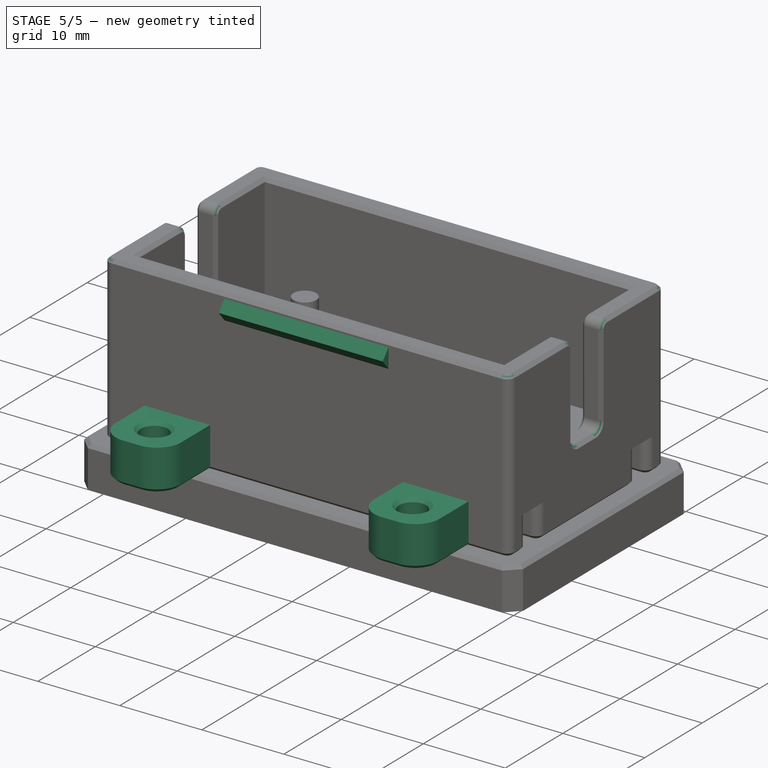
[diagram: stage 5 of 5 — iso view after this stage's code; geometry added in this stage tinted green]
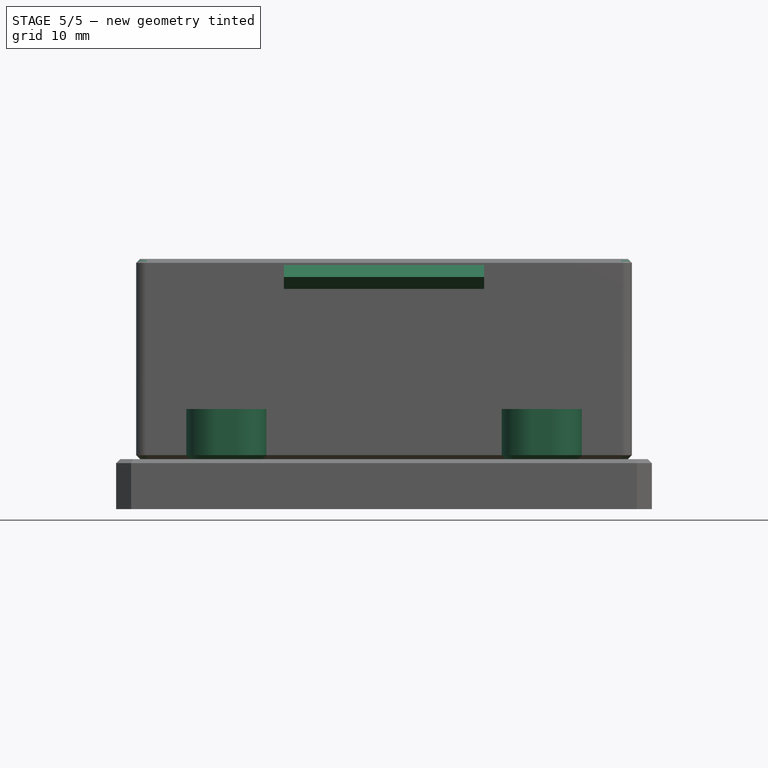
[diagram: stage 5 of 5 — front view after this stage's code; geometry added in this stage tinted green]
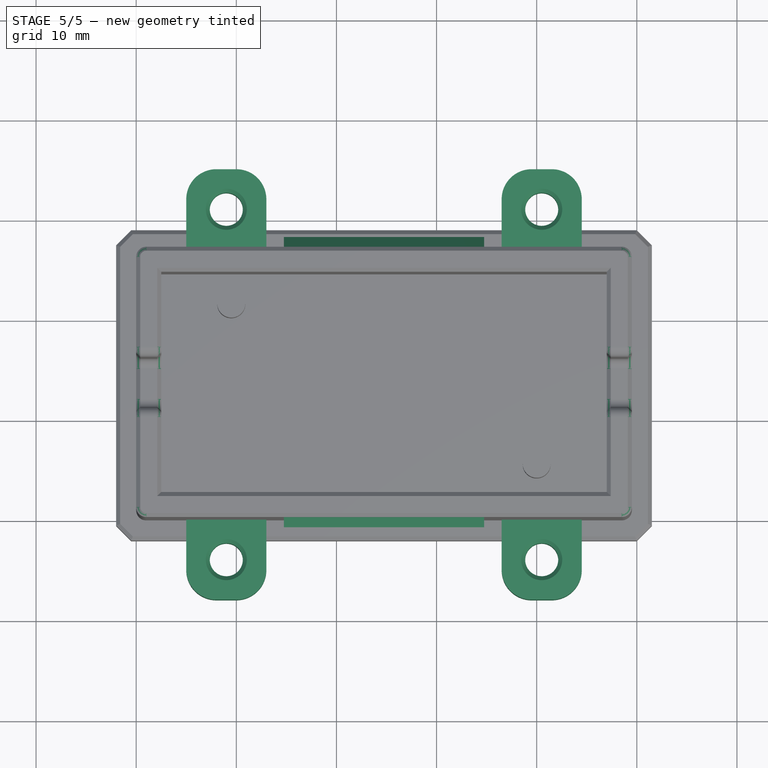
[diagram: stage 5 of 5 — top view after this stage's code; geometry added in this stage tinted green]
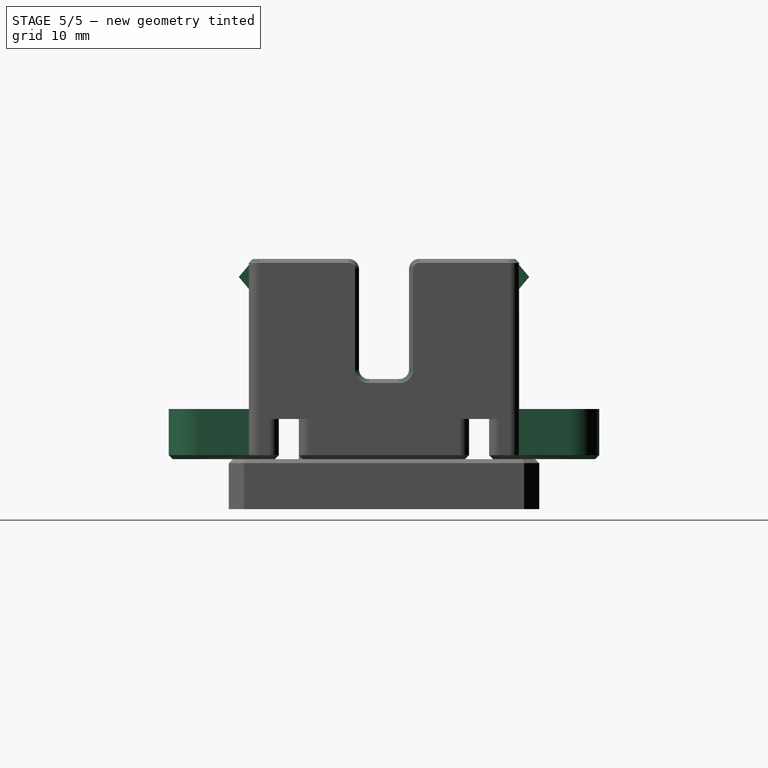
[diagram: stage 5 of 5 — right view after this stage's code; geometry added in this stage tinted green]
FEATURE [Sketcher::SketchObject] Sketch005
  ExternalGeometry = -> [Fillet]
  FullyConstrained = true
  MapMode = 5
  Placement = pos=(0,0,0) rot=(1,0,0;3.14159rad)
  Support = -> [Fillet]
  sketch-geometry (20):
    g0: LineSegment StartX=5 StartY=0 StartZ=0 EndX=13 EndY=0 EndZ=0
    g1: LineSegment StartX=13 StartY=0 StartZ=0 EndX=13 EndY=8 EndZ=0
    g2: LineSegment StartX=13 StartY=8 StartZ=0 EndX=5 EndY=8 EndZ=0
    g3: LineSegment StartX=5 StartY=8 StartZ=0 EndX=5 EndY=0 EndZ=0
    g4: LineSegment StartX=44.5 StartY=0 StartZ=0 EndX=36.5 EndY=0 EndZ=0
    g5: LineSegment StartX=36.5 StartY=0 StartZ=0 EndX=36.5 EndY=8 EndZ=0
    g6: LineSegment StartX=36.5 StartY=8 StartZ=0 EndX=44.5 EndY=8 EndZ=0
    g7: LineSegment StartX=44.5 StartY=8 StartZ=0 EndX=44.5 EndY=0 EndZ=0
    g8: LineSegment StartX=5 StartY=-27 StartZ=0 EndX=13 EndY=-27 EndZ=0
    g9: LineSegment StartX=13 StartY=-27 StartZ=0 EndX=13 EndY=-35 EndZ=0
    g10: LineSegment StartX=13 StartY=-35 StartZ=0 EndX=5 EndY=-35 EndZ=0
    g11: LineSegment StartX=5 StartY=-35 StartZ=0 EndX=5 EndY=-27 EndZ=0
    g12: LineSegment StartX=36.5 StartY=-27 StartZ=0 EndX=44.5 EndY=-27 EndZ=0
    g13: LineSegment StartX=44.5 StartY=-27 StartZ=0 EndX=44.5 EndY=-35 EndZ=0
    g14: LineSegment StartX=44.5 StartY=-35 StartZ=0 EndX=36.5 EndY=-35 EndZ=0
    g15: LineSegment StartX=36.5 StartY=-35 StartZ=0 EndX=36.5 EndY=-27 EndZ=0
    g16: Circle CenterX=9 CenterY=4 CenterZ=0 NormalX=0 NormalY=0 NormalZ=1 AngleXU=0 Radius=1.65
    g17: Circle CenterX=9 CenterY=-31 CenterZ=0 NormalX=0 NormalY=0 NormalZ=1 AngleXU=0 Radius=1.65
    g18: Circle CenterX=40.5 CenterY=-31 CenterZ=0 NormalX=0 NormalY=0 NormalZ=1 AngleXU=0 Radius=1.65
    g19: Circle CenterX=40.5 CenterY=4 CenterZ=0 NormalX=0 NormalY=0 NormalZ=1 AngleXU=0 Radius=1.65
  constraints (60):
    c: Coincident(g0,g1)
    c: Coincident(g1,g2)
    c: Coincident(g2,g3)
    c: Coincident(g3,g0)
    c: Horizontal(g0)
    c: Horizontal(g2)
    c: Vertical(g1)
    c: Vertical(g3)
    c: PointOnObject(g0,g-1)
    c: Coincident(g4,g5)
    c: Coincident(g5,g6)
    c: Coincident(g6,g7)
    c: Coincident(g7,g4)
    c: Horizontal(g4)
    c: Horizontal(g6)
    c: Vertical(g5)
    c: Vertical(g7)
    c: PointOnObject(g4,g-1)
    c: Coincident(g8,g9)
    c: Coincident(g9,g10)
    c: Coincident(g10,g11)
    c: Coincident(g11,g8)
    c: Horizontal(g8)
    c: Horizontal(g10)
    c: Vertical(g9)
    c: Vertical(g11)
    c: PointOnObject(g8,g-3)
    c: Coincident(g12,g13)
    c: Coincident(g13,g14)
    c: Coincident(g14,g15)
    c: Coincident(g15,g12)
    c: Horizontal(g12)
    c: Horizontal(g14)
    c: Vertical(g13)
    c: Vertical(g15)
    c: PointOnObject(g12,g-3)
    c: Vertical(g8,g0)
    c: Vertical(g8,g0)
    c: Vertical(g12,g4)
    c: Vertical(g12,g4)
    c: DistanceX(g2,g2) = 8
    c: Equal(g10,g14)
    c: Equal(g6,g7)
    c: Equal(g7,g1)
    c: Equal(g1,g9)
    c: Equal(g9,g13)
    c: DistanceX(g-1,g2) = 5
    c: DistanceX(g6,g-4) = 5
    c: Vertical(g16,g17)
    c: Horizontal(g16,g19)
    c: Horizontal(g17,g18)
    c: DistanceY(g16,g2) = 4
    c: DistanceY(g10,g17) = 4
    c: DistanceX(g2,g16) = 4
    c: DistanceX(g19,g6) = 4
    c: Equal(g16,g17)
    c: Equal(g17,g18)
    c: Equal(g18,g19)
    c: Radius(g19) = 1.65
    c: Vertical(g18,g19)
FEATURE [PartDesign::Pad] Pad002
  BaseFeature = -> Fillet
  Direction = (1,1,1)
  Length = 5
  Length2 = 100
  Profile = -> Sketch005
  Reversed = true
  Type = 0
FEATURE [PartDesign::Fillet] Fillet001
  Base = -> Pad002 [Edge22,Edge28,Edge30,Edge36,Edge389,Edge394,Edge395,Edge400]
  BaseFeature = -> Pad002
  Radius = 3
  Refine = true
  SupportTransform = false
FEATURE [PartDesign::Plane] DatumPlane
  AttachmentOffset = pos=(0,0,24.75) rot=(0,0,1;0rad)
  Length = 70.9545
  MapMode = 5
  Placement = pos=(24.75,-5.5e-15,5.5e-15) rot=(0.57735,0.57735,0.57735;2.0944rad)
  ResizeMode = 0
  Support = -> [YZ_Plane]
  Width = 60.9545
FEATURE [Sketcher::SketchObject] Sketch006
  FullyConstrained = true
  MapMode = 5
  Placement = pos=(24.75,-5.5e-15,5.5e-15) rot=(0.57735,0.57735,0.57735;2.0944rad)
  Support = -> [DatumPlane]
  sketch-geometry (6):
    g0: LineSegment StartX=0 StartY=19.3835 StartZ=0 EndX=-1 EndY=18.1918 EndZ=0
    g1: LineSegment StartX=-1 StartY=18.1918 StartZ=0 EndX=0 EndY=17 EndZ=0
    g2: LineSegment StartX=0 StartY=17 StartZ=0 EndX=0 EndY=19.3835 EndZ=0
    g3: LineSegment StartX=27 StartY=19.3835 StartZ=0 EndX=27 EndY=17 EndZ=0
    g4: LineSegment StartX=27 StartY=17 StartZ=0 EndX=28 EndY=18.1918 EndZ=0
    g5: LineSegment StartX=28 StartY=18.1918 StartZ=0 EndX=27 EndY=19.3835 EndZ=0
  constraints (18):
    c: PointOnObject(g0,g-2)
    c: Coincident(g0,g1)
    c: PointOnObject(g1,g-2)
    c: Coincident(g1,g2)
    c: Coincident(g2,g0)
    c: Vertical(g3)
    c: Coincident(g3,g4)
    c: Coincident(g4,g5)
    c: Coincident(g5,g3)
    c: Horizontal(g1,g3)
    c: Horizontal(g0,g4)
    c: Horizontal(g0,g3)
    c: Angle(g2,g1) = 0.698132
    c: Angle(g0,g2) = 0.698132
    c: DistanceX(g0,g1) = 1
    c: DistanceY(g-1,g1) = 17
    c: DistanceX(g3,g4) = 1
    c: DistanceX(g-1,g3) = 27
FEATURE [PartDesign::Pad] Pad003
  BaseFeature = -> Fillet001
  Direction = (1,1,1)
  Length = 20
  Length2 = 100
  Midplane = true
  Profile = -> Sketch006
  Type = 0
FEATURE [PartDesign::Chamfer] Chamfer002
  Angle = 45
  Base = -> Pad003 [Face29,Face39,Face2,Face147,Face148,Face149,Edge75,Edge73,Edge90,Edge29,Edge47,Edge64,Edge63,Edge61,Edge59,Edge57,Edge55,Edge54,Edge53,Edge51,Edge134,Edge138,Edge140,Edge86,Edge85,Edge76,Edge77,Edge79,Edge81,Edge83,Edge267,Edge265,Edge262,Edge260,Edge257,Edge255,Edge253,Edge106,Edge105,Edge104,+14 more]
  BaseFeature = -> Pad003
  ChamferType = 0
  FlipDirection = false
  Size = 0.4
  Size2 = 1
  SupportTransform = false
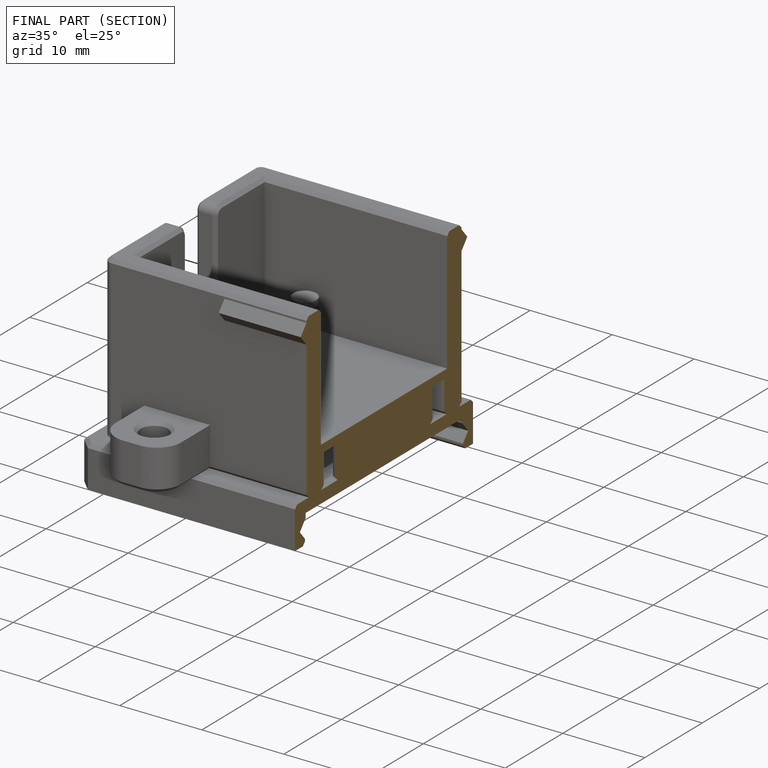
[diagram: finished part — half-section view (interior)]
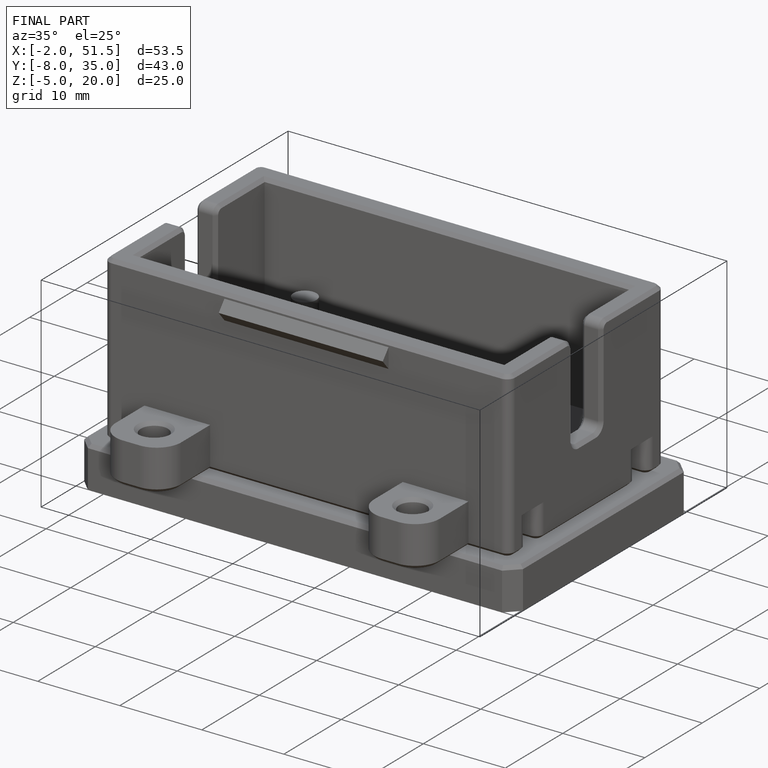
[diagram: finished part — iso view with bounding-box wireframe]
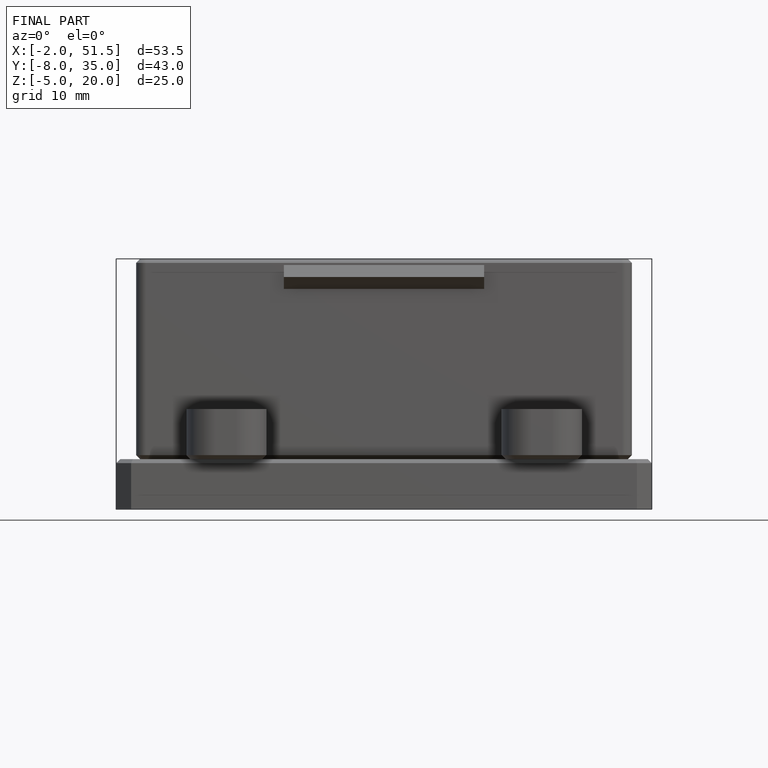
[diagram: finished part — front view with bounding-box wireframe]
